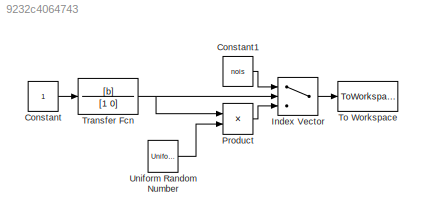
MODEL slx_9232c4064743
KIND model
CONFIG AbsTol = auto
CONFIG EnableMultiTasking = on
CONFIG FixedStep = auto
CONFIG MaxStep = auto
CONFIG MinStep = auto
CONFIG RelTol = 1e-3
CONFIG SampleTimeConstraint = Unconstrained
CONFIG Solver = ode45
CONFIG SolverName = ode45
CONFIG StartTime = 0.0
CONFIG StopTime = 10.0
BLOCK [Constant] Constant
BLOCK [Constant] Constant1
  Value = nois
BLOCK [MultiPortSwitch] Index Vector
  DataPortOrder = Zero-based contiguous
  InputSameDT = off
  Inputs = 2
  Ports = [3, 1]
  SaturateOnIntegerOverflow = off
  zeroidx = on
BLOCK [Product] Product
  InputSameDT = off
  OutDataTypeStr = Inherit: Inherit via internal rule
  Ports = [2, 1]
  RndMeth = Floor
  SaturateOnIntegerOverflow = off
BLOCK [ToWorkspace] To Workspace
  MaxDataPoints = inf
  Ports = [1]
  SampleTime = -1
  SaveFormat = Timeseries
  VariableName = x
BLOCK [TransferFcn] Transfer Fcn
  Denominator = [1 0]
  Numerator = [b]
BLOCK [UniformRandomNumber] Uniform Random Number
  Maximum = nmax
  Minimum = nmin
  SampleTime = 0.1
LINE Constant1:1 -> Index Vector:1
LINE Constant:1 -> Transfer Fcn:1
LINE Index Vector:1 -> To Workspace:1
LINE Product:1 -> Index Vector:3
NET Transfer Fcn:1 -> Index Vector:2, Product:1
LINE Uniform Random Number:1 -> Product:2
note: NET lines group one-source signal fan-out (src -> all destinations, sorted); 1:1 wires keep LINE
